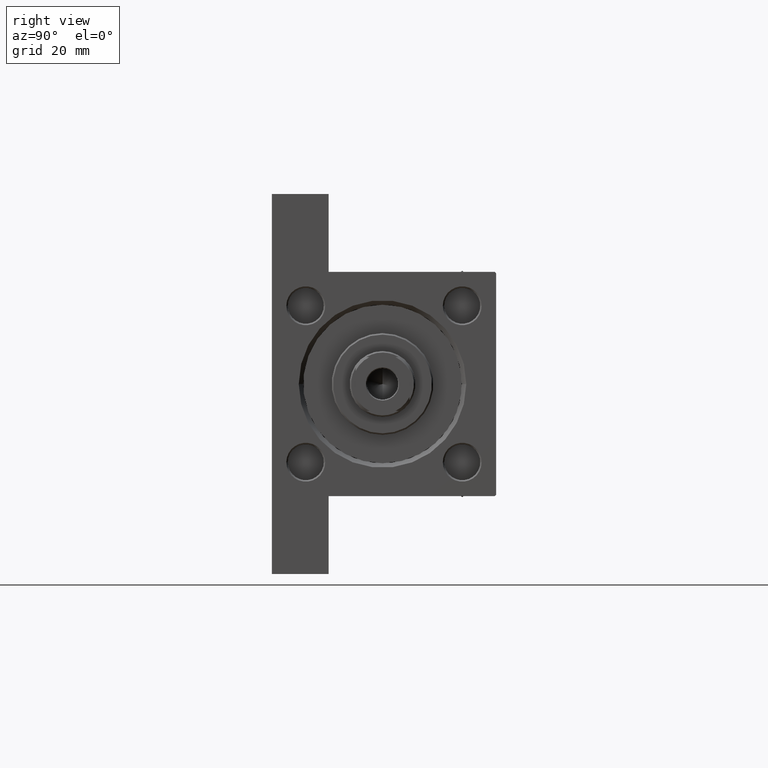
[diagram: clean part render]
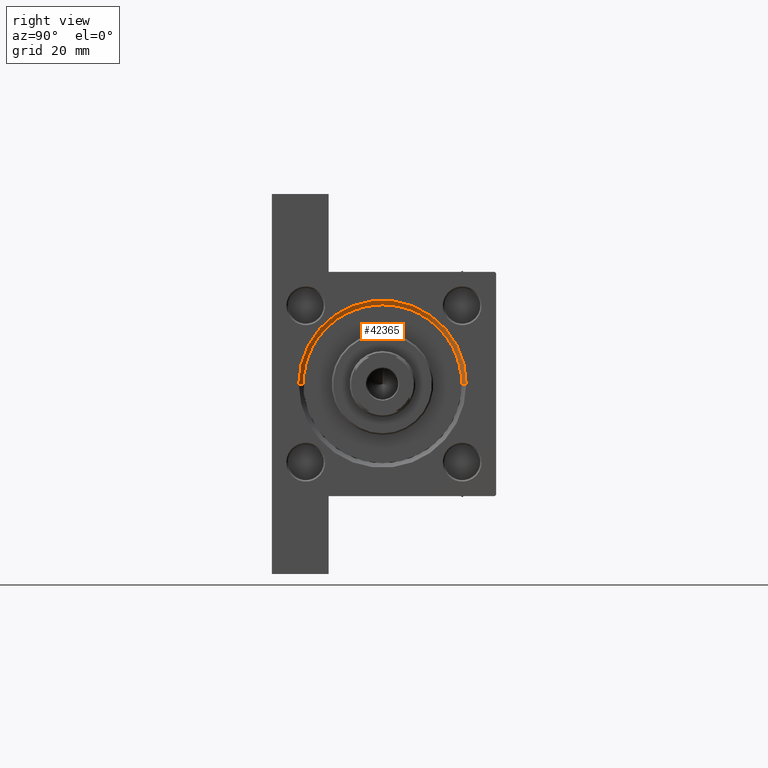
[diagram: same view with one face highlighted and labeled with its STEP entity id]
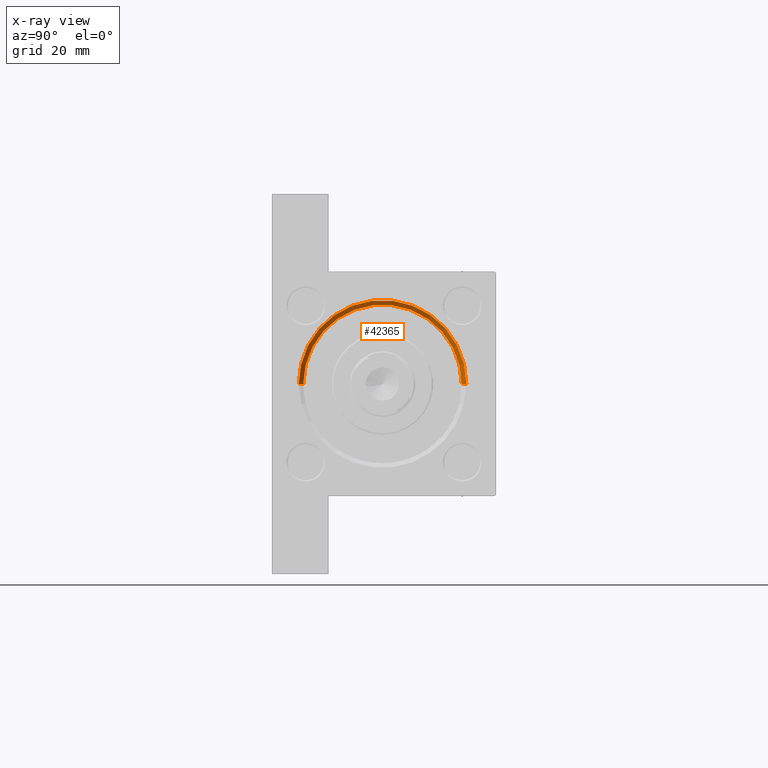
[diagram: x-ray of the same camera — body ghosted, the highlighted face saturated]
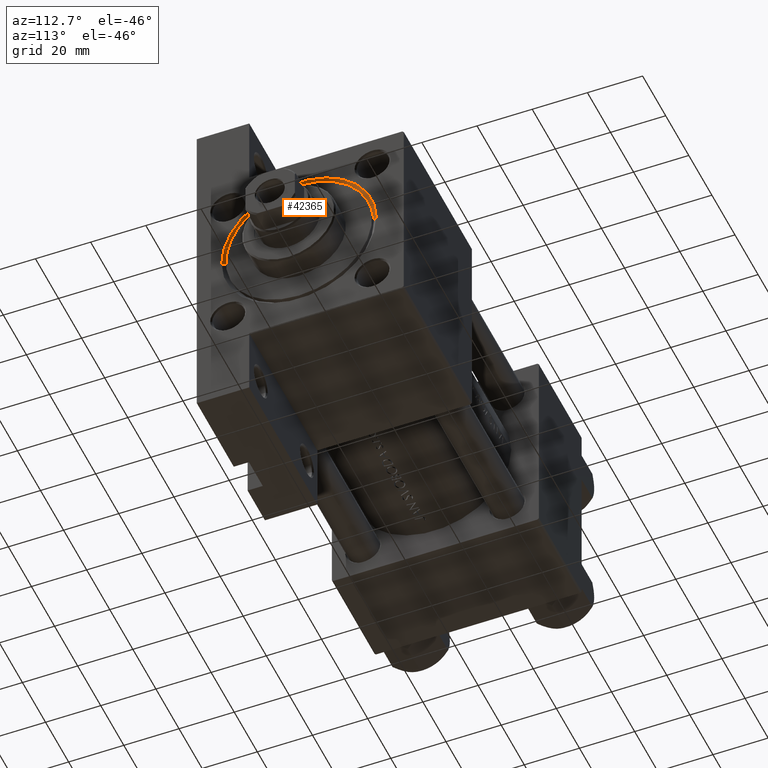
[diagram: same view with one face highlighted and labeled with its STEP entity id]
A machine part, right view. The second image highlights one B-rep face of the part: STEP entity #42365.
The next image is the same camera in x-ray: the body ghosted, the highlighted face saturated — about 0% of this face is hidden behind the body in this view.
A second angle (auxiliary view) of the same face is appended — the face is thin or edge-on in the first view.
In plain terms, the highlighted conical surface has half-angle 45 deg.
Its self-contained STEP definition (entity closure, byte-faithful):
#304 = DIRECTION ( 'NONE',  ( 0.7071067811865361374, 0.000000000000000000, -0.7071067811865588970 ) ) ;
#3967 = VERTEX_POINT ( 'NONE', #15958 ) ;
#4847 = DIRECTION ( 'NONE',  ( 0.000000000000000000, 0.000000000000000000, 1.000000000000000000 ) ) ;
#5611 = VERTEX_POINT ( 'NONE', #23085 ) ;
#5930 = VECTOR ( 'NONE', #304, 1000.000000000000114 ) ;
#11212 = ORIENTED_EDGE ( 'NONE', *, *, #13333, .T. ) ;
#11310 = CARTESIAN_POINT ( 'NONE',  ( 152.5000000000000568, 3.245314017740486554E-15, 26.00000000000000355 ) ) ;
#11612 = DIRECTION ( 'NONE',  ( -1.000000000000000000, -0.000000000000000000, 0.000000000000000000 ) ) ;
#11640 = DIRECTION ( 'NONE',  ( 1.000000000000000000, 0.000000000000000000, 0.000000000000000000 ) ) ;
#12716 = EDGE_CURVE ( 'NONE', #46056, #5611, #14744, .T. ) ;
#13333 = EDGE_CURVE ( 'NONE', #46056, #3967, #14919, .T. ) ;
#14304 = ORIENTED_EDGE ( 'NONE', *, *, #40774, .F. ) ;
#14744 = CIRCLE ( 'NONE', #38625, 26.50000000000000355 ) ;
#14919 = LINE ( 'NONE', #11310, #40940 ) ;
#15958 = CARTESIAN_POINT ( 'NONE',  ( 154.0000000000000000, 3.429011037612588881E-15, 27.49999999999999645 ) ) ;
#16924 = VERTEX_POINT ( 'NONE', #26554 ) ;
#22712 = CARTESIAN_POINT ( 'NONE',  ( 152.5000000000000568, 3.245314017740486554E-15, 26.00000000000000355 ) ) ;
#23085 = CARTESIAN_POINT ( 'NONE',  ( 152.5000000000000568, 0.000000000000000000, -27.00000000000000355 ) ) ;
#23183 = EDGE_CURVE ( 'NONE', #16924, #3967, #35253, .T. ) ;
#24276 = CARTESIAN_POINT ( 'NONE',  ( 152.5000000000000568, 0.000000000000000000, -0.5000000000000004441 ) ) ;
#25659 = EDGE_LOOP ( 'NONE', ( #39130, #11212, #27572, #14304 ) ) ;
#26554 = CARTESIAN_POINT ( 'NONE',  ( 154.0000000000000000, 0.000000000000000000, -28.49999999999999645 ) ) ;
#27572 = ORIENTED_EDGE ( 'NONE', *, *, #23183, .F. ) ;
#28976 = AXIS2_PLACEMENT_3D ( 'NONE', #44663, #11640, #29673 ) ;
#29673 = DIRECTION ( 'NONE',  ( 0.000000000000000000, 0.000000000000000000, -1.000000000000000000 ) ) ;
#29913 = CARTESIAN_POINT ( 'NONE',  ( 152.5000000000000568, 0.000000000000000000, -27.00000000000000355 ) ) ;
#30317 = DIRECTION ( 'NONE',  ( 0.7071067811865361374, 8.659560562355073374E-17, 0.7071067811865588970 ) ) ;
#30368 = CARTESIAN_POINT ( 'NONE',  ( 154.0000000000000000, 0.000000000000000000, -0.5000000000000004441 ) ) ;
#35253 = CIRCLE ( 'NONE', #39092, 27.99999999999999645 ) ;
#35940 = CONICAL_SURFACE ( 'NONE', #28976, 26.50000000000000355, 0.7853981633974644883 ) ;
#38625 = AXIS2_PLACEMENT_3D ( 'NONE', #24276, #43572, #46965 ) ;
#39092 = AXIS2_PLACEMENT_3D ( 'NONE', #30368, #11612, #4847 ) ;
#39130 = ORIENTED_EDGE ( 'NONE', *, *, #12716, .F. ) ;
#40774 = EDGE_CURVE ( 'NONE', #5611, #16924, #43957, .T. ) ;
#40940 = VECTOR ( 'NONE', #30317, 1000.000000000000114 ) ;
#42365 = ADVANCED_FACE ( 'NONE', ( #44906 ), #35940, .F. ) ;
#43572 = DIRECTION ( 'NONE',  ( 1.000000000000000000, 0.000000000000000000, 0.000000000000000000 ) ) ;
#43957 = LINE ( 'NONE', #29913, #5930 ) ;
#44663 = CARTESIAN_POINT ( 'NONE',  ( 152.5000000000000568, 0.000000000000000000, -0.5000000000000004441 ) ) ;
#44906 = FACE_OUTER_BOUND ( 'NONE', #25659, .T. ) ;
#46056 = VERTEX_POINT ( 'NONE', #22712 ) ;
#46965 = DIRECTION ( 'NONE',  ( 0.000000000000000000, 0.000000000000000000, 1.000000000000000000 ) ) ;